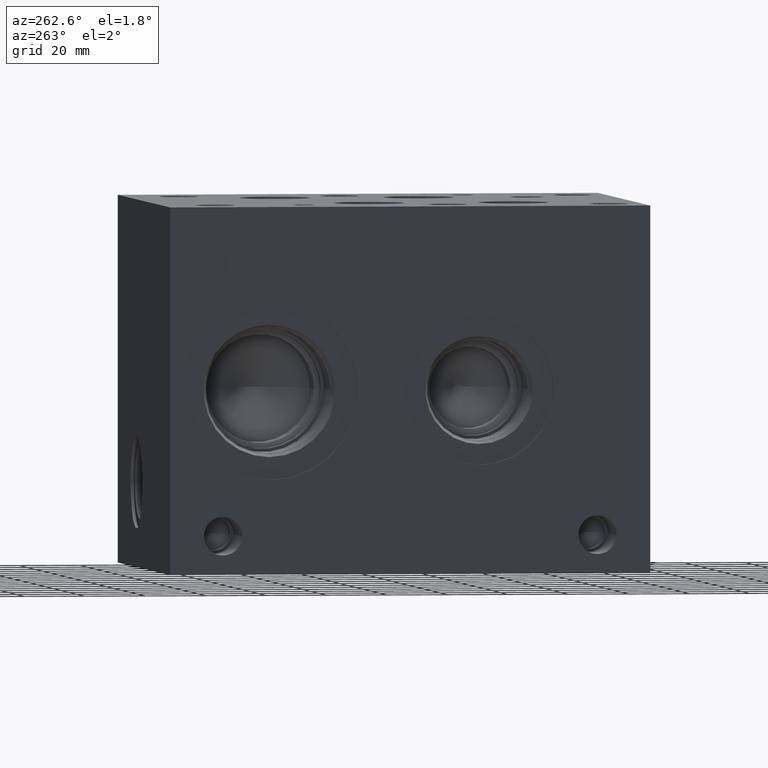
[diagram: clean part render]
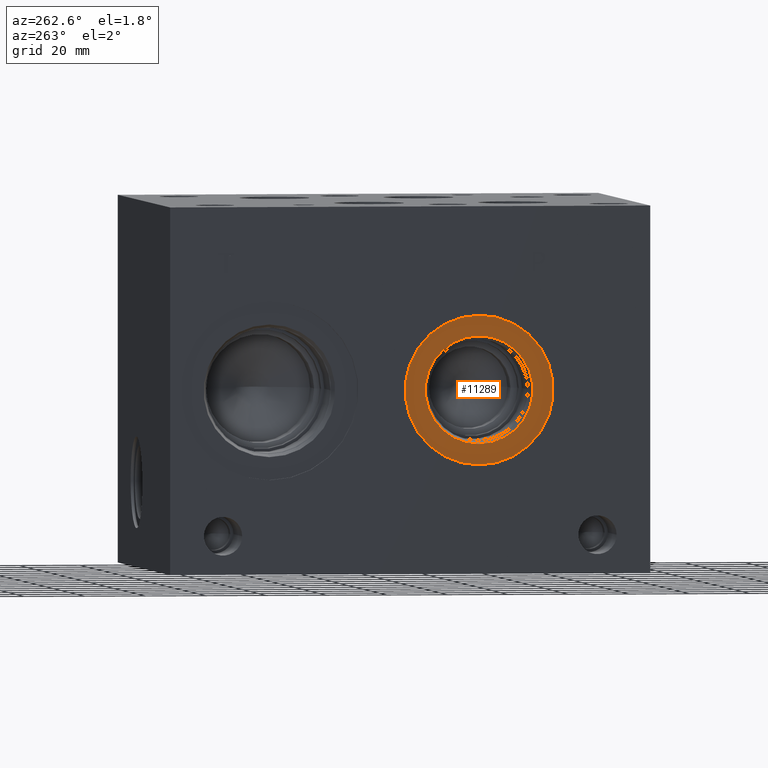
[diagram: same view with one face highlighted and labeled with its STEP entity id]
A machine part, auxiliary view. The second image highlights one B-rep face of the part: STEP entity #11289.
In plain terms, the highlighted planar face has unit normal (1, 0, 0).
Its self-contained STEP definition (entity closure, byte-faithful):
#303=CIRCLE('',#11913,24.5618);
#304=CIRCLE('',#11914,24.5618);
#305=CIRCLE('',#11916,17.7546);
#306=CIRCLE('',#11917,17.7546);
#468=FACE_BOUND('',#2107,.T.);
#1449=FACE_OUTER_BOUND('',#2106,.T.);
#2106=EDGE_LOOP('',(#9703,#9704));
#2107=EDGE_LOOP('',(#9705,#9706));
#5200=VERTEX_POINT('',#19287);
#5201=VERTEX_POINT('',#19289);
#5202=VERTEX_POINT('',#19293);
#5203=VERTEX_POINT('',#19294);
#6738=EDGE_CURVE('',#5200,#5201,#303,.T.);
#6739=EDGE_CURVE('',#5201,#5200,#304,.T.);
#6740=EDGE_CURVE('',#5202,#5203,#305,.T.);
#6741=EDGE_CURVE('',#5203,#5202,#306,.T.);
#9703=ORIENTED_EDGE('',*,*,#6739,.F.);
#9704=ORIENTED_EDGE('',*,*,#6738,.F.);
#9705=ORIENTED_EDGE('',*,*,#6740,.T.);
#9706=ORIENTED_EDGE('',*,*,#6741,.T.);
#10326=PLANE('',#11915);
#11289=ADVANCED_FACE('',(#1449,#468),#10326,.F.);
#11913=AXIS2_PLACEMENT_3D('',#19290,#14149,#14150);
#11914=AXIS2_PLACEMENT_3D('',#19291,#14151,#14152);
#11915=AXIS2_PLACEMENT_3D('',#19292,#14153,#14154);
#11916=AXIS2_PLACEMENT_3D('',#19295,#14155,#14156);
#11917=AXIS2_PLACEMENT_3D('',#19296,#14157,#14158);
#14149=DIRECTION('center_axis',(1.,0.,0.));
#14150=DIRECTION('ref_axis',(0.,0.,-1.));
#14151=DIRECTION('center_axis',(1.,0.,0.));
#14152=DIRECTION('ref_axis',(0.,0.,-1.));
#14153=DIRECTION('center_axis',(1.,0.,0.));
#14154=DIRECTION('ref_axis',(0.,0.,-1.));
#14155=DIRECTION('center_axis',(1.,0.,0.));
#14156=DIRECTION('ref_axis',(0.,0.,-1.));
#14157=DIRECTION('center_axis',(1.,0.,0.));
#14158=DIRECTION('ref_axis',(0.,0.,-1.));
#19287=CARTESIAN_POINT('',(0.7874,56.4896,35.7632));
#19289=CARTESIAN_POINT('',(0.7874,56.4896,84.8868));
#19290=CARTESIAN_POINT('Origin',(0.7874,56.4896,60.325));
#19291=CARTESIAN_POINT('Origin',(0.7874,56.4896,60.325));
#19292=CARTESIAN_POINT('Origin',(0.7874,56.4896,78.0796));
#19293=CARTESIAN_POINT('',(0.7874,56.4896,78.0796));
#19294=CARTESIAN_POINT('',(0.787400000000001,56.4896,42.5704));
#19295=CARTESIAN_POINT('Origin',(0.7874,56.4896,60.325));
#19296=CARTESIAN_POINT('Origin',(0.7874,56.4896,60.325));